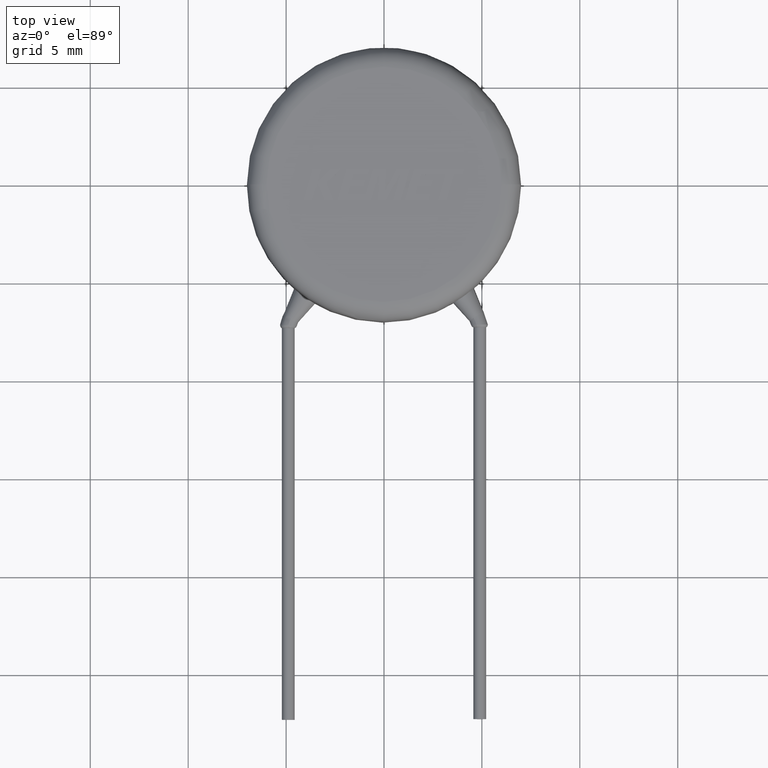
[diagram: clean part render]
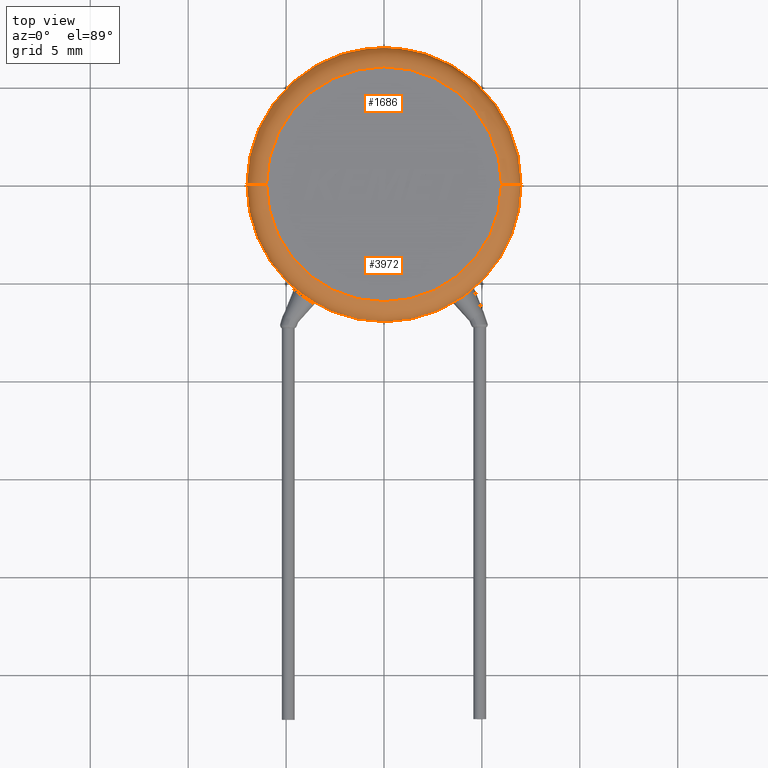
[diagram: same view with one multi-face feature highlighted, each face labeled with its STEP entity id]
A machine part, top view. The highlighted faces form ONE feature: a constant-radius fillet chain: 2 tangent blend faces with common blend radius 1 mm. The faces share edges in the B-rep.
Their STEP definitions:
[1] entity #3972 (Torus):
#26 = CARTESIAN_POINT ( 'NONE',  ( 0.0000000000000000000, 0.0000000000000000000, 5.000000000000000000 ) ) ;
#239 = CARTESIAN_POINT ( 'NONE',  ( 6.000000000000000000, 0.0000000000000000000, 5.000000000000000000 ) ) ;
#410 = DIRECTION ( 'NONE',  ( -0.0000000000000000000, -0.0000000000000000000, -1.000000000000000000 ) ) ;
#412 = B_SPLINE_CURVE_WITH_KNOTS ( 'NONE', 3,
 ( #3897, #3571, #945, #1233 ),
 .UNSPECIFIED., .F., .F.,
 ( 4, 4 ),
 ( 1.072464780320890200E-006, 0.0002374928856080532400 ),
 .UNSPECIFIED. ) ;
#448 = DIRECTION ( 'NONE',  ( 1.000000000000000000, 0.0000000000000000000, 0.0000000000000000000 ) ) ;
#520 = VERTEX_POINT ( 'NONE', #239 ) ;
#538 = CIRCLE ( 'NONE', #3452, 7.000000000000000000 ) ;
#556 = ORIENTED_EDGE ( 'NONE', *, *, #1639, .T. ) ;
#615 = DIRECTION ( 'NONE',  ( 0.0000000000000000000, -1.000000000000000000, 0.0000000000000000000 ) ) ;
#686 = EDGE_CURVE ( 'NONE', #4165, #520, #2191, .T. ) ;
#835 = CARTESIAN_POINT ( 'NONE',  ( 0.0000000000000000000, 0.0000000000000000000, 4.000000000000000000 ) ) ;
#945 = CARTESIAN_POINT ( 'NONE',  ( 4.106549894890408200, -5.669432091939675000, 4.014556585585903100 ) ) ;
#1014 = AXIS2_PLACEMENT_3D ( 'NONE', #26, #3349, #3969 ) ;
#1028 = AXIS2_PLACEMENT_3D ( 'NONE', #3843, #615, #1224 ) ;
#1052 = DIRECTION ( 'NONE',  ( 1.000000000000000000, 0.0000000000000000000, 0.0000000000000000000 ) ) ;
#1170 = CIRCLE ( 'NONE', #3971, 1.000000000000000000 ) ;
#1224 = DIRECTION ( 'NONE',  ( 0.0000000000000000000, 0.0000000000000000000, -1.000000000000000000 ) ) ;
#1232 = DIRECTION ( 'NONE',  ( 1.224646799147353200E-016, 1.000000000000000000, -0.0000000000000000000 ) ) ;
#1233 = CARTESIAN_POINT ( 'NONE',  ( 4.169857457478782300, -5.622480661088002500, 4.000000000000000000 ) ) ;
#1387 = CARTESIAN_POINT ( 'NONE',  ( 0.0000000000000000000, 0.0000000000000000000, 4.000000000000000000 ) ) ;
#1525 = AXIS2_PLACEMENT_3D ( 'NONE', #4080, #3395, #4255 ) ;
#1535 = DIRECTION ( 'NONE',  ( -1.000000000000000000, 1.224646799147353500E-016, 0.0000000000000000000 ) ) ;
#1629 = ORIENTED_EDGE ( 'NONE', *, *, #686, .T. ) ;
#1639 = EDGE_CURVE ( 'NONE', #4056, #3766, #412, .T. ) ;
#1752 = CIRCLE ( 'NONE', #1014, 6.000000000000000000 ) ;
#1793 = CARTESIAN_POINT ( 'NONE',  ( 7.000000000000000000, 8.572527594031473200E-016, 4.000000000000000000 ) ) ;
#1966 = CARTESIAN_POINT ( 'NONE',  ( -7.000000000000000000, 0.0000000000000000000, 4.000000000000000000 ) ) ;
#1975 = ORIENTED_EDGE ( 'NONE', *, *, #3613, .F. ) ;
#2064 = EDGE_CURVE ( 'NONE', #4165, #3766, #538, .T. ) ;
#2081 = CARTESIAN_POINT ( 'NONE',  ( 4.169857457478782300, -5.622480661088002500, 4.000000000000000000 ) ) ;
#2191 = CIRCLE ( 'NONE', #1028, 1.000000000000000000 ) ;
#2249 = TOROIDAL_SURFACE ( 'NONE', #1525, 6.000000000000000000, 1.000000000000000000 ) ;
#2319 = CARTESIAN_POINT ( 'NONE',  ( -6.000000000000000000, 7.960204194457795500E-016, 5.000000000000000000 ) ) ;
#2364 = EDGE_CURVE ( 'NONE', #2608, #520, #1752, .T. ) ;
#2608 = VERTEX_POINT ( 'NONE', #2319 ) ;
#2813 = ORIENTED_EDGE ( 'NONE', *, *, #2064, .F. ) ;
#2866 = CARTESIAN_POINT ( 'NONE',  ( -6.000000000000000000, 7.347880794884119700E-016, 4.000000000000000000 ) ) ;
#2920 = ORIENTED_EDGE ( 'NONE', *, *, #2364, .F. ) ;
#2964 = FACE_OUTER_BOUND ( 'NONE', #3592, .T. ) ;
#3006 = DIRECTION ( 'NONE',  ( -0.0000000000000000000, -0.0000000000000000000, -1.000000000000000000 ) ) ;
#3126 = VERTEX_POINT ( 'NONE', #1966 ) ;
#3189 = ORIENTED_EDGE ( 'NONE', *, *, #3467, .F. ) ;
#3349 = DIRECTION ( 'NONE',  ( 0.0000000000000000000, 0.0000000000000000000, 1.000000000000000000 ) ) ;
#3395 = DIRECTION ( 'NONE',  ( 0.0000000000000000000, 0.0000000000000000000, 1.000000000000000000 ) ) ;
#3452 = AXIS2_PLACEMENT_3D ( 'NONE', #1387, #3006, #1052 ) ;
#3467 = EDGE_CURVE ( 'NONE', #4056, #3126, #4102, .T. ) ;
#3571 = CARTESIAN_POINT ( 'NONE',  ( 4.042467621873091100, -5.715301200339768100, 4.014627541671496000 ) ) ;
#3592 = EDGE_LOOP ( 'NONE', ( #1975, #3189, #556, #2813, #1629, #2920 ) ) ;
#3613 = EDGE_CURVE ( 'NONE', #3126, #2608, #1170, .T. ) ;
#3756 = CARTESIAN_POINT ( 'NONE',  ( 3.977610638397353500, -5.760087986247102200, 4.000000000000000000 ) ) ;
#3766 = VERTEX_POINT ( 'NONE', #2081 ) ;
#3843 = CARTESIAN_POINT ( 'NONE',  ( 6.000000000000000000, 0.0000000000000000000, 4.000000000000000000 ) ) ;
#3897 = CARTESIAN_POINT ( 'NONE',  ( 3.977610638397353500, -5.760087986247102200, 4.000000000000000000 ) ) ;
#3969 = DIRECTION ( 'NONE',  ( 1.000000000000000000, 0.0000000000000000000, 0.0000000000000000000 ) ) ;
#3971 = AXIS2_PLACEMENT_3D ( 'NONE', #2866, #1232, #1535 ) ;
#3972 = ADVANCED_FACE ( 'NONE', ( #2964 ), #2249, .T. ) ;
#4030 = AXIS2_PLACEMENT_3D ( 'NONE', #835, #410, #448 ) ;
#4056 = VERTEX_POINT ( 'NONE', #3756 ) ;
#4080 = CARTESIAN_POINT ( 'NONE',  ( 0.0000000000000000000, 0.0000000000000000000, 4.000000000000000000 ) ) ;
#4102 = CIRCLE ( 'NONE', #4030, 7.000000000000000000 ) ;
#4165 = VERTEX_POINT ( 'NONE', #1793 ) ;
#4255 = DIRECTION ( 'NONE',  ( 1.000000000000000000, 0.0000000000000000000, 0.0000000000000000000 ) ) ;
[2] entity #1686 (Torus):
#49 = DIRECTION ( 'NONE',  ( 1.000000000000000000, 0.0000000000000000000, 0.0000000000000000000 ) ) ;
#239 = CARTESIAN_POINT ( 'NONE',  ( 6.000000000000000000, 0.0000000000000000000, 5.000000000000000000 ) ) ;
#520 = VERTEX_POINT ( 'NONE', #239 ) ;
#545 = TOROIDAL_SURFACE ( 'NONE', #1258, 6.000000000000000000, 1.000000000000000000 ) ;
#615 = DIRECTION ( 'NONE',  ( 0.0000000000000000000, -1.000000000000000000, 0.0000000000000000000 ) ) ;
#647 = CIRCLE ( 'NONE', #1763, 7.000000000000000000 ) ;
#686 = EDGE_CURVE ( 'NONE', #4165, #520, #2191, .T. ) ;
#1028 = AXIS2_PLACEMENT_3D ( 'NONE', #3843, #615, #1224 ) ;
#1170 = CIRCLE ( 'NONE', #3971, 1.000000000000000000 ) ;
#1224 = DIRECTION ( 'NONE',  ( 0.0000000000000000000, 0.0000000000000000000, -1.000000000000000000 ) ) ;
#1232 = DIRECTION ( 'NONE',  ( 1.224646799147353200E-016, 1.000000000000000000, -0.0000000000000000000 ) ) ;
#1258 = AXIS2_PLACEMENT_3D ( 'NONE', #3989, #1340, #49 ) ;
#1324 = ORIENTED_EDGE ( 'NONE', *, *, #1904, .F. ) ;
#1340 = DIRECTION ( 'NONE',  ( 0.0000000000000000000, 0.0000000000000000000, 1.000000000000000000 ) ) ;
#1396 = FACE_OUTER_BOUND ( 'NONE', #1782, .T. ) ;
#1535 = DIRECTION ( 'NONE',  ( -1.000000000000000000, 1.224646799147353500E-016, 0.0000000000000000000 ) ) ;
#1634 = DIRECTION ( 'NONE',  ( 0.0000000000000000000, 0.0000000000000000000, 1.000000000000000000 ) ) ;
#1686 = ADVANCED_FACE ( 'NONE', ( #1396 ), #545, .T. ) ;
#1763 = AXIS2_PLACEMENT_3D ( 'NONE', #2174, #1820, #3505 ) ;
#1782 = EDGE_LOOP ( 'NONE', ( #1324, #2865, #2022, #2916 ) ) ;
#1793 = CARTESIAN_POINT ( 'NONE',  ( 7.000000000000000000, 8.572527594031473200E-016, 4.000000000000000000 ) ) ;
#1820 = DIRECTION ( 'NONE',  ( -0.0000000000000000000, -0.0000000000000000000, -1.000000000000000000 ) ) ;
#1904 = EDGE_CURVE ( 'NONE', #3126, #4165, #647, .T. ) ;
#1966 = CARTESIAN_POINT ( 'NONE',  ( -7.000000000000000000, 0.0000000000000000000, 4.000000000000000000 ) ) ;
#1988 = DIRECTION ( 'NONE',  ( 1.000000000000000000, 0.0000000000000000000, 0.0000000000000000000 ) ) ;
#2022 = ORIENTED_EDGE ( 'NONE', *, *, #3690, .F. ) ;
#2174 = CARTESIAN_POINT ( 'NONE',  ( 0.0000000000000000000, 0.0000000000000000000, 4.000000000000000000 ) ) ;
#2191 = CIRCLE ( 'NONE', #1028, 1.000000000000000000 ) ;
#2319 = CARTESIAN_POINT ( 'NONE',  ( -6.000000000000000000, 7.960204194457795500E-016, 5.000000000000000000 ) ) ;
#2608 = VERTEX_POINT ( 'NONE', #2319 ) ;
#2631 = AXIS2_PLACEMENT_3D ( 'NONE', #2644, #1634, #1988 ) ;
#2644 = CARTESIAN_POINT ( 'NONE',  ( 0.0000000000000000000, 0.0000000000000000000, 5.000000000000000000 ) ) ;
#2865 = ORIENTED_EDGE ( 'NONE', *, *, #3613, .T. ) ;
#2866 = CARTESIAN_POINT ( 'NONE',  ( -6.000000000000000000, 7.347880794884119700E-016, 4.000000000000000000 ) ) ;
#2916 = ORIENTED_EDGE ( 'NONE', *, *, #686, .F. ) ;
#3117 = CIRCLE ( 'NONE', #2631, 6.000000000000000000 ) ;
#3126 = VERTEX_POINT ( 'NONE', #1966 ) ;
#3505 = DIRECTION ( 'NONE',  ( 1.000000000000000000, 0.0000000000000000000, 0.0000000000000000000 ) ) ;
#3613 = EDGE_CURVE ( 'NONE', #3126, #2608, #1170, .T. ) ;
#3690 = EDGE_CURVE ( 'NONE', #520, #2608, #3117, .T. ) ;
#3843 = CARTESIAN_POINT ( 'NONE',  ( 6.000000000000000000, 0.0000000000000000000, 4.000000000000000000 ) ) ;
#3971 = AXIS2_PLACEMENT_3D ( 'NONE', #2866, #1232, #1535 ) ;
#3989 = CARTESIAN_POINT ( 'NONE',  ( 0.0000000000000000000, 0.0000000000000000000, 4.000000000000000000 ) ) ;
#4165 = VERTEX_POINT ( 'NONE', #1793 ) ;